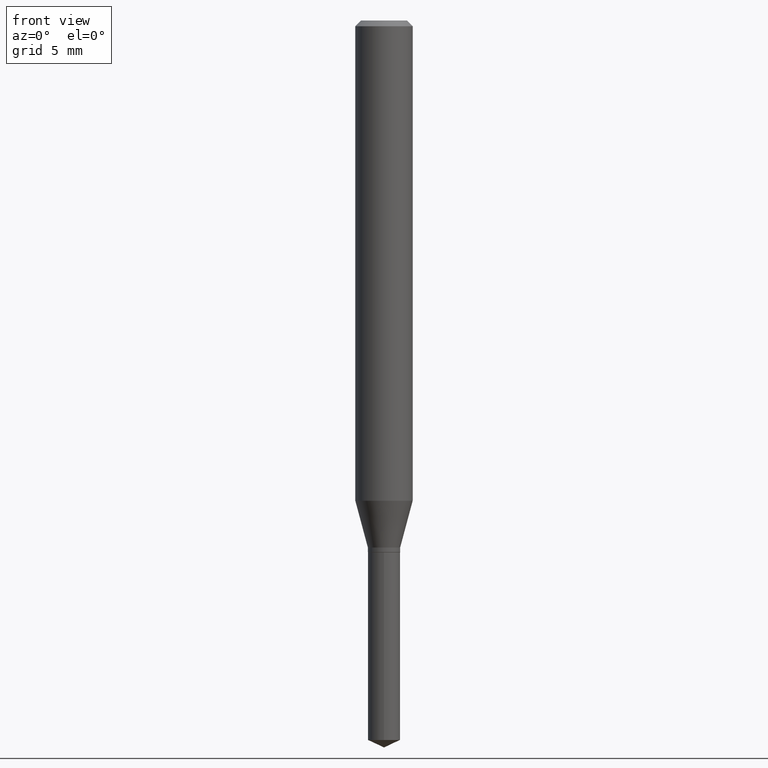
[diagram: clean part render]
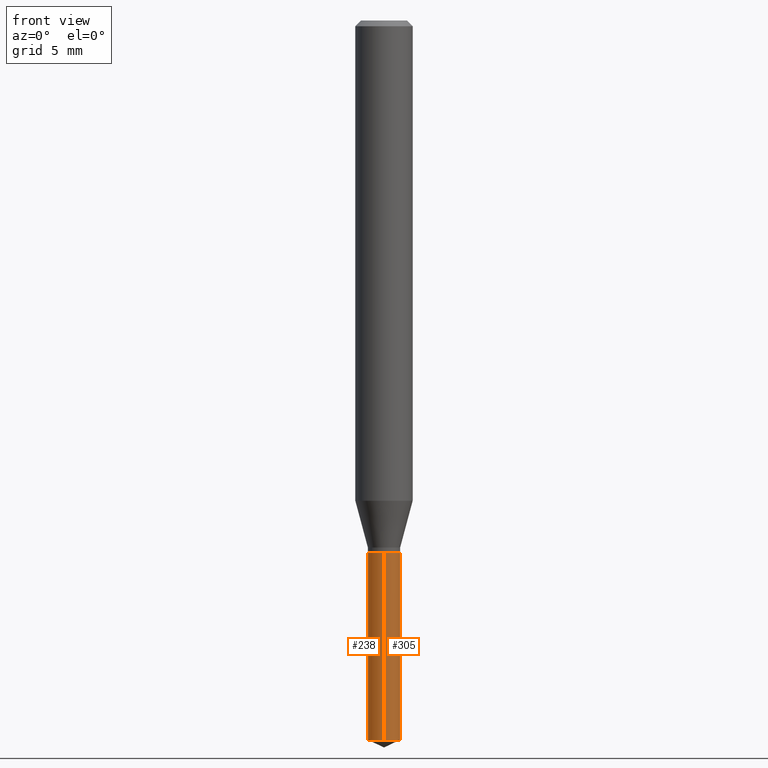
[diagram: same view with one multi-face feature highlighted, each face labeled with its STEP entity id]
A machine part, front view. The highlighted faces form ONE feature: a constant-radius fillet chain: 2 tangent blend faces with common blend radius 0.8446 mm. The faces share edges in the B-rep.
Their STEP definitions:
[1] entity #305 (Cylinder):
#30 = CIRCLE ( 'NONE', #414, 0.03325000000000000178 ) ;
#39 = DIRECTION ( 'NONE',  ( -2.445470214571802396E-29, 3.491479321953280158E-15, 1.000000000000000000 ) ) ;
#53 = VERTEX_POINT ( 'NONE', #284 ) ;
#61 = VECTOR ( 'NONE', #39, 39.37007874015748143 ) ;
#66 = CARTESIAN_POINT ( 'NONE',  ( -2.321835090330415843E-16, -0.03325000000000382511, -1.094499999999999806 ) ) ;
#67 = DIRECTION ( 'NONE',  ( -2.445470214571802116E-29, 3.491479321953280158E-15, 1.000000000000000000 ) ) ;
#118 = CIRCLE ( 'NONE', #399, 0.03325000000000000178 ) ;
#124 = EDGE_LOOP ( 'NONE', ( #295, #271, #413, #469 ) ) ;
#171 = EDGE_CURVE ( 'NONE', #187, #475, #226, .T. ) ;
#178 = CARTESIAN_POINT ( 'NONE',  ( 2.676565608369631794E-29, -3.821426325363822773E-15, -1.094499999999999806 ) ) ;
#181 = DIRECTION ( 'NONE',  ( -6.982962677686265922E-15, -1.000000000000000000, 4.108042095735734288E-15 ) ) ;
#186 = CYLINDRICAL_SURFACE ( 'NONE', #208, 0.03325000000000000178 ) ;
#187 = VERTEX_POINT ( 'NONE', #234 ) ;
#194 = CARTESIAN_POINT ( 'NONE',  ( 3.620750092037578923E-29, -5.169469978151881884E-15, -1.480595270366346305 ) ) ;
#208 = AXIS2_PLACEMENT_3D ( 'NONE', #178, #67, #181 ) ;
#211 = DIRECTION ( 'NONE',  ( -6.982962677686265922E-15, -1.000000000000000000, 4.108042095735734288E-15 ) ) ;
#226 = LINE ( 'NONE', #381, #61 ) ;
#234 = CARTESIAN_POINT ( 'NONE',  ( -2.321835090330320687E-16, -0.03325000000000517125, -1.480595270366346305 ) ) ;
#255 = FACE_OUTER_BOUND ( 'NONE', #124, .T. ) ;
#264 = CARTESIAN_POINT ( 'NONE',  ( 2.676565608369631794E-29, -3.821426325363822773E-15, -1.094499999999999806 ) ) ;
#271 = ORIENTED_EDGE ( 'NONE', *, *, #314, .T. ) ;
#272 = DIRECTION ( 'NONE',  ( -6.982962677686265922E-15, -1.000000000000000000, 0.000000000000000000 ) ) ;
#284 = CARTESIAN_POINT ( 'NONE',  ( 2.362554596402695134E-16, 0.03324999999999617845, -1.094500000000000028 ) ) ;
#295 = ORIENTED_EDGE ( 'NONE', *, *, #409, .T. ) ;
#305 = ADVANCED_FACE ( 'NONE', ( #255 ), #186, .T. ) ;
#314 = EDGE_CURVE ( 'NONE', #317, #53, #332, .T. ) ;
#317 = VERTEX_POINT ( 'NONE', #379 ) ;
#318 = VECTOR ( 'NONE', #457, 39.37007874015748143 ) ;
#332 = LINE ( 'NONE', #453, #318 ) ;
#344 = DIRECTION ( 'NONE',  ( -2.445470214571802116E-29, 3.491479321953280158E-15, 1.000000000000000000 ) ) ;
#371 = DIRECTION ( 'NONE',  ( -2.445470214571802116E-29, 3.491479321953280158E-15, 1.000000000000000000 ) ) ;
#379 = CARTESIAN_POINT ( 'NONE',  ( 2.362554596402695134E-16, 0.03324999999999482536, -1.480595270366346305 ) ) ;
#381 = CARTESIAN_POINT ( 'NONE',  ( -2.321835090330415843E-16, -0.03325000000000382511, -1.094499999999999806 ) ) ;
#399 = AXIS2_PLACEMENT_3D ( 'NONE', #264, #371, #211 ) ;
#409 = EDGE_CURVE ( 'NONE', #187, #317, #30, .T. ) ;
#413 = ORIENTED_EDGE ( 'NONE', *, *, #471, .F. ) ;
#414 = AXIS2_PLACEMENT_3D ( 'NONE', #194, #344, #272 ) ;
#453 = CARTESIAN_POINT ( 'NONE',  ( 2.362554596402600471E-16, 0.03324999999999617845, -1.094500000000000028 ) ) ;
#457 = DIRECTION ( 'NONE',  ( -2.445470214571802396E-29, 3.491479321953280158E-15, 1.000000000000000000 ) ) ;
#469 = ORIENTED_EDGE ( 'NONE', *, *, #171, .F. ) ;
#471 = EDGE_CURVE ( 'NONE', #475, #53, #118, .T. ) ;
#475 = VERTEX_POINT ( 'NONE', #66 ) ;
[2] entity #238 (Cylinder):
#12 = ORIENTED_EDGE ( 'NONE', *, *, #127, .T. ) ;
#16 = CIRCLE ( 'NONE', #221, 0.03325000000000000178 ) ;
#28 = CYLINDRICAL_SURFACE ( 'NONE', #109, 0.03325000000000000178 ) ;
#39 = DIRECTION ( 'NONE',  ( -2.445470214571802396E-29, 3.491479321953280158E-15, 1.000000000000000000 ) ) ;
#53 = VERTEX_POINT ( 'NONE', #284 ) ;
#61 = VECTOR ( 'NONE', #39, 39.37007874015748143 ) ;
#66 = CARTESIAN_POINT ( 'NONE',  ( -2.321835090330415843E-16, -0.03325000000000382511, -1.094499999999999806 ) ) ;
#90 = ORIENTED_EDGE ( 'NONE', *, *, #171, .T. ) ;
#109 = AXIS2_PLACEMENT_3D ( 'NONE', #144, #212, #489 ) ;
#127 = EDGE_CURVE ( 'NONE', #317, #187, #16, .T. ) ;
#141 = DIRECTION ( 'NONE',  ( -2.445470214571802116E-29, 3.491479321953280158E-15, 1.000000000000000000 ) ) ;
#144 = CARTESIAN_POINT ( 'NONE',  ( 2.676565608369631794E-29, -3.821426325363822773E-15, -1.094499999999999806 ) ) ;
#145 = EDGE_LOOP ( 'NONE', ( #390, #12, #90, #421 ) ) ;
#171 = EDGE_CURVE ( 'NONE', #187, #475, #226, .T. ) ;
#187 = VERTEX_POINT ( 'NONE', #234 ) ;
#209 = DIRECTION ( 'NONE',  ( -6.982962677686265922E-15, -1.000000000000000000, 0.000000000000000000 ) ) ;
#212 = DIRECTION ( 'NONE',  ( -2.445470214571802116E-29, 3.491479321953280158E-15, 1.000000000000000000 ) ) ;
#221 = AXIS2_PLACEMENT_3D ( 'NONE', #402, #401, #209 ) ;
#226 = LINE ( 'NONE', #381, #61 ) ;
#234 = CARTESIAN_POINT ( 'NONE',  ( -2.321835090330320687E-16, -0.03325000000000517125, -1.480595270366346305 ) ) ;
#238 = ADVANCED_FACE ( 'NONE', ( #341 ), #28, .T. ) ;
#284 = CARTESIAN_POINT ( 'NONE',  ( 2.362554596402695134E-16, 0.03324999999999617845, -1.094500000000000028 ) ) ;
#314 = EDGE_CURVE ( 'NONE', #317, #53, #332, .T. ) ;
#317 = VERTEX_POINT ( 'NONE', #379 ) ;
#318 = VECTOR ( 'NONE', #457, 39.37007874015748143 ) ;
#332 = LINE ( 'NONE', #453, #318 ) ;
#336 = DIRECTION ( 'NONE',  ( -6.982962677686265922E-15, -1.000000000000000000, 4.108042095735734288E-15 ) ) ;
#341 = FACE_OUTER_BOUND ( 'NONE', #145, .T. ) ;
#351 = CIRCLE ( 'NONE', #439, 0.03325000000000000178 ) ;
#379 = CARTESIAN_POINT ( 'NONE',  ( 2.362554596402695134E-16, 0.03324999999999482536, -1.480595270366346305 ) ) ;
#381 = CARTESIAN_POINT ( 'NONE',  ( -2.321835090330415843E-16, -0.03325000000000382511, -1.094499999999999806 ) ) ;
#390 = ORIENTED_EDGE ( 'NONE', *, *, #314, .F. ) ;
#401 = DIRECTION ( 'NONE',  ( -2.445470214571802116E-29, 3.491479321953280158E-15, 1.000000000000000000 ) ) ;
#402 = CARTESIAN_POINT ( 'NONE',  ( 3.620750092037578923E-29, -5.169469978151881884E-15, -1.480595270366346305 ) ) ;
#421 = ORIENTED_EDGE ( 'NONE', *, *, #456, .F. ) ;
#439 = AXIS2_PLACEMENT_3D ( 'NONE', #483, #141, #336 ) ;
#453 = CARTESIAN_POINT ( 'NONE',  ( 2.362554596402600471E-16, 0.03324999999999617845, -1.094500000000000028 ) ) ;
#456 = EDGE_CURVE ( 'NONE', #53, #475, #351, .T. ) ;
#457 = DIRECTION ( 'NONE',  ( -2.445470214571802396E-29, 3.491479321953280158E-15, 1.000000000000000000 ) ) ;
#475 = VERTEX_POINT ( 'NONE', #66 ) ;
#483 = CARTESIAN_POINT ( 'NONE',  ( 2.676565608369631794E-29, -3.821426325363822773E-15, -1.094499999999999806 ) ) ;
#489 = DIRECTION ( 'NONE',  ( -6.982962677686265922E-15, -1.000000000000000000, 4.108042095735734288E-15 ) ) ;